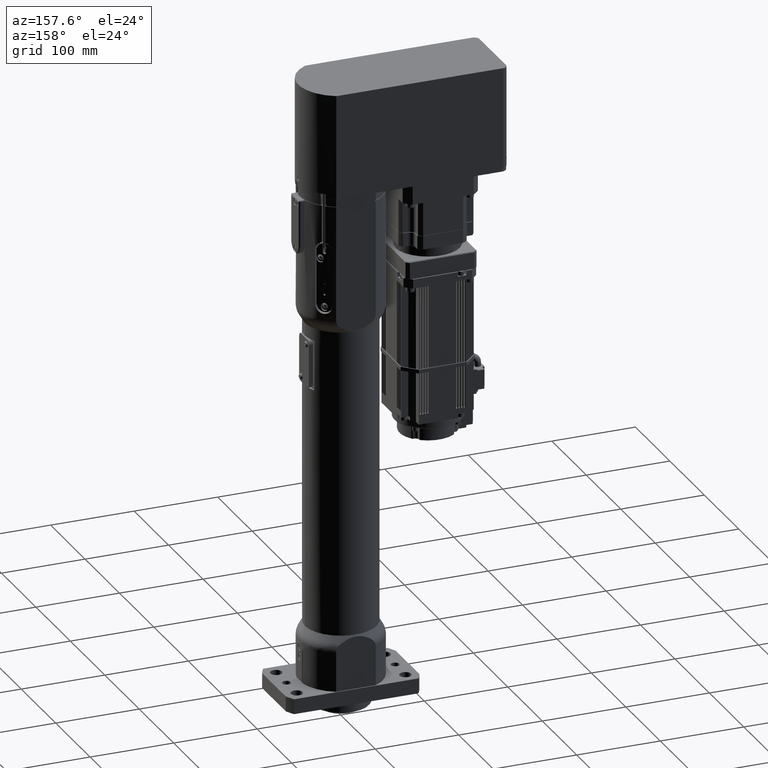
[diagram: clean part render]
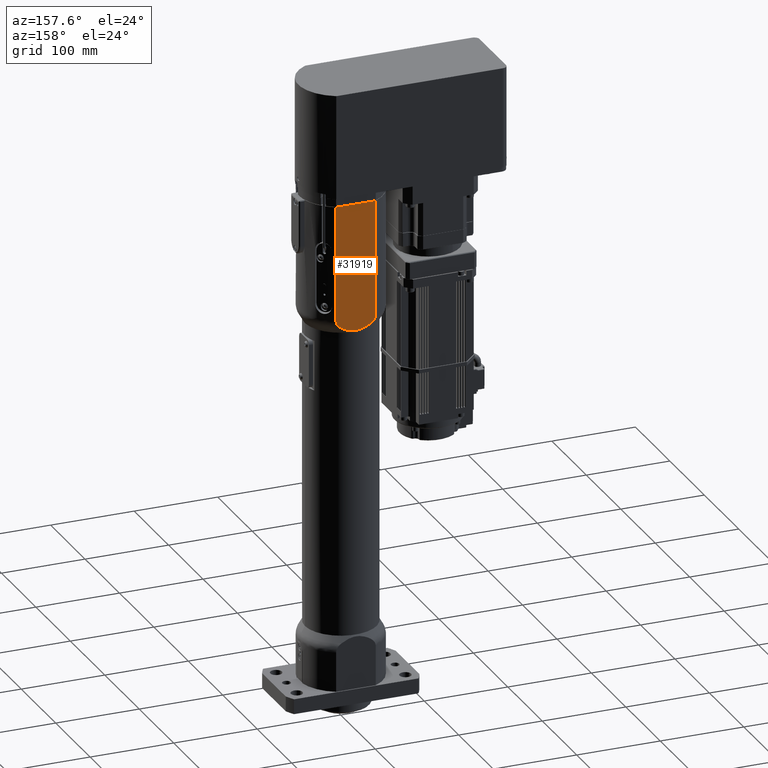
[diagram: same view with one face highlighted and labeled with its STEP entity id]
A machine part, auxiliary view. The second image highlights one B-rep face of the part: STEP entity #31919.
In plain terms, the highlighted planar face has unit normal (0, 1, -0).
Its self-contained STEP definition (entity closure, byte-faithful):
#102=(
BOUNDED_CURVE()
B_SPLINE_CURVE(2,(#50154,#50155,#50156),.UNSPECIFIED.,.F.,.F.)
B_SPLINE_CURVE_WITH_KNOTS((3,3),(0.,3.66773939196051),.UNSPECIFIED.)
CURVE()
GEOMETRIC_REPRESENTATION_ITEM()
RATIONAL_B_SPLINE_CURVE((1.,1.07546609262928,1.))
REPRESENTATION_ITEM('')
);
#717=PLANE('',#34339);
#1914=LINE('',#48698,#4567);
#2179=LINE('',#50280,#4832);
#2184=LINE('',#50354,#4837);
#2185=LINE('',#50356,#4838);
#2186=LINE('',#50357,#4839);
#4567=VECTOR('',#38302,45.3541618817943);
#4832=VECTOR('',#39569,137.516660498395);
#4837=VECTOR('',#39590,1.07160323317965);
#4838=VECTOR('',#39591,1.0716032331777);
#4839=VECTOR('',#39592,137.516660498395);
#7973=FACE_OUTER_BOUND('',#9808,.T.);
#9808=EDGE_LOOP('',(#23276,#23277,#23278,#23279,#23280,#23281,#23282,#23283));
#11282=B_SPLINE_CURVE_WITH_KNOTS('',3,(#50288,#50289,#50290,#50291,#50292,
#50293,#50294,#50295,#50296,#50297,#50298,#50299,#50300,#50301),
 .UNSPECIFIED.,.F.,.F.,(4,2,2,2,2,2,4),(7.45745620804549,7.64599320848022,
7.91508123407936,8.10491084271874,8.29474045135811,8.45672411882077,8.61870778628343),
 .UNSPECIFIED.);
#11284=B_SPLINE_CURVE_WITH_KNOTS('',3,(#50319,#50320,#50321,#50322,#50323,
#50324,#50325,#50326,#50327,#50328,#50329,#50330,#50331,#50332),
 .UNSPECIFIED.,.F.,.F.,(4,2,2,2,2,2,4),(2.8729025954278,3.03488626289046,
3.19686993035311,3.38669953899249,3.57652914763187,3.84561717323101,4.03415417366575),
 .UNSPECIFIED.);
#13541=VERTEX_POINT('',#48679);
#13545=VERTEX_POINT('',#48694);
#13872=VERTEX_POINT('',#50152);
#13873=VERTEX_POINT('',#50153);
#13889=VERTEX_POINT('',#50278);
#13890=VERTEX_POINT('',#50279);
#13893=VERTEX_POINT('',#50287);
#13896=VERTEX_POINT('',#50355);
#16825=EDGE_CURVE('',#13541,#13545,#1914,.T.);
#17375=EDGE_CURVE('',#13872,#13873,#102,.T.);
#17401=EDGE_CURVE('',#13889,#13890,#2179,.T.);
#17405=EDGE_CURVE('',#13873,#13893,#11282,.T.);
#17408=EDGE_CURVE('',#13890,#13872,#11284,.T.);
#17413=EDGE_CURVE('',#13541,#13889,#2184,.T.);
#17414=EDGE_CURVE('',#13896,#13545,#2185,.T.);
#17415=EDGE_CURVE('',#13893,#13896,#2186,.T.);
#23276=ORIENTED_EDGE('',*,*,#17405,.F.);
#23277=ORIENTED_EDGE('',*,*,#17375,.F.);
#23278=ORIENTED_EDGE('',*,*,#17408,.F.);
#23279=ORIENTED_EDGE('',*,*,#17401,.F.);
#23280=ORIENTED_EDGE('',*,*,#17413,.F.);
#23281=ORIENTED_EDGE('',*,*,#16825,.T.);
#23282=ORIENTED_EDGE('',*,*,#17414,.F.);
#23283=ORIENTED_EDGE('',*,*,#17415,.F.);
#31919=ADVANCED_FACE('',(#7973),#717,.T.);
#34339=AXIS2_PLACEMENT_3D('',#50353,#39588,#39589);
#38302=DIRECTION('',(1.,-1.70373609185641E-13,1.69198618777464E-13));
#39569=DIRECTION('',(1.66731258754108E-13,-7.81502316840869E-15,-1.));
#39588=DIRECTION('center_axis',(1.28925730081261E-13,1.,-7.79443320538251E-15));
#39589=DIRECTION('ref_axis',(0.,7.79443320538251E-15,1.));
#39590=DIRECTION('',(-1.,2.99208139341244E-12,3.15619001277412E-11));
#39591=DIRECTION('',(-1.,-4.50055456129062E-12,-3.18934326921663E-11));
#39592=DIRECTION('',(-1.66731258754108E-13,7.75043620007473E-15,1.));
#48679=CARTESIAN_POINT('',(-22.6770809408709,43.9999999999829,605.000000000017));
#48694=CARTESIAN_POINT('',(22.6770809409234,43.9999999999752,605.000000000025));
#48698=CARTESIAN_POINT('',(-22.6770809408709,43.9999999999829,605.000000000017));
#50152=CARTESIAN_POINT('',(-17.4135144224132,43.9999999999842,457.483339501656));
#50153=CARTESIAN_POINT('',(17.4135144225129,43.9999999999797,457.483339501663));
#50154=CARTESIAN_POINT('Ctrl Pts',(-17.4135144224132,43.9999999999842,457.483339501656));
#50155=CARTESIAN_POINT('Ctrl Pts',(5.17230702712368E-11,43.9999999999819,
446.384333447261));
#50156=CARTESIAN_POINT('Ctrl Pts',(17.4135144225129,43.9999999999797,457.483339501663));
#50278=CARTESIAN_POINT('',(-23.7486841740506,43.9999999999862,605.000000000051));
#50279=CARTESIAN_POINT('',(-23.7486841740277,43.9999999999851,467.483339501655));
#50280=CARTESIAN_POINT('',(-23.7486841740506,43.9999999999862,605.000000000051));
#50287=CARTESIAN_POINT('',(23.748684174124,43.999999999979,467.483339501664));
#50288=CARTESIAN_POINT('Ctrl Pts',(17.4135144225128,43.9999999999797,457.483339501663));
#50289=CARTESIAN_POINT('Ctrl Pts',(17.9691772268653,43.9999999999796,457.837507229101));
#50290=CARTESIAN_POINT('Ctrl Pts',(18.5307143099681,43.9999999999796,458.236225585859));
#50291=CARTESIAN_POINT('Ctrl Pts',(19.8257663310387,43.9999999999794,459.28478571415));
#50292=CARTESIAN_POINT('Ctrl Pts',(20.5281513532946,43.9999999999793,459.972053709749));
#50293=CARTESIAN_POINT('Ctrl Pts',(21.5116079174977,43.9999999999792,461.143750398716));
#50294=CARTESIAN_POINT('Ctrl Pts',(21.9207607468744,43.9999999999792,461.705440237386));
#50295=CARTESIAN_POINT('Ctrl Pts',(22.6269587479096,43.9999999999791,462.894015590623));
#50296=CARTESIAN_POINT('Ctrl Pts',(22.9232767902279,43.999999999979,463.52133298229));
#50297=CARTESIAN_POINT('Ctrl Pts',(23.3273240656627,43.999999999979,464.622240199952));
#50298=CARTESIAN_POINT('Ctrl Pts',(23.4886062749529,43.999999999979,465.192550791248));
#50299=CARTESIAN_POINT('Ctrl Pts',(23.6994141424247,43.999999999979,466.353104453733));
#50300=CARTESIAN_POINT('Ctrl Pts',(23.748684174124,43.999999999979,466.943393943455));
#50301=CARTESIAN_POINT('Ctrl Pts',(23.748684174124,43.999999999979,467.483339501663));
#50319=CARTESIAN_POINT('Ctrl Pts',(-23.7486841740276,43.9999999999851,467.483339501656));
#50320=CARTESIAN_POINT('Ctrl Pts',(-23.7486841740275,43.9999999999851,466.943393943447));
#50321=CARTESIAN_POINT('Ctrl Pts',(-23.6994141423279,43.9999999999851,466.353104453725));
#50322=CARTESIAN_POINT('Ctrl Pts',(-23.4886062748557,43.999999999985,465.19255079124));
#50323=CARTESIAN_POINT('Ctrl Pts',(-23.3273240655654,43.999999999985,464.622240199944));
#50324=CARTESIAN_POINT('Ctrl Pts',(-22.9232767901302,43.9999999999849,463.521332982283));
#50325=CARTESIAN_POINT('Ctrl Pts',(-22.6269587478117,43.9999999999849,462.894015590615));
#50326=CARTESIAN_POINT('Ctrl Pts',(-21.9207607467761,43.9999999999848,461.705440237379));
#50327=CARTESIAN_POINT('Ctrl Pts',(-21.5116079173992,43.9999999999847,461.143750398709));
#50328=CARTESIAN_POINT('Ctrl Pts',(-20.5281513531957,43.9999999999846,459.972053709742));
#50329=CARTESIAN_POINT('Ctrl Pts',(-19.8257663309396,43.9999999999845,459.284785714143));
#50330=CARTESIAN_POINT('Ctrl Pts',(-18.5307143098686,43.9999999999843,458.236225585853));
#50331=CARTESIAN_POINT('Ctrl Pts',(-17.9691772267656,43.9999999999842,457.837507229095));
#50332=CARTESIAN_POINT('Ctrl Pts',(-17.413514422413,43.9999999999842,457.483339501657));
#50353=CARTESIAN_POINT('Origin',(-23.7486841739694,43.9999999999824,118.000000000051));
#50354=CARTESIAN_POINT('',(-22.6770809408709,43.9999999999829,605.000000000017));
#50355=CARTESIAN_POINT('',(23.7486841741011,43.99999999998,605.000000000059));
#50356=CARTESIAN_POINT('',(23.7486841741011,43.99999999998,605.000000000059));
#50357=CARTESIAN_POINT('',(23.748684174124,43.999999999979,467.483339501664));